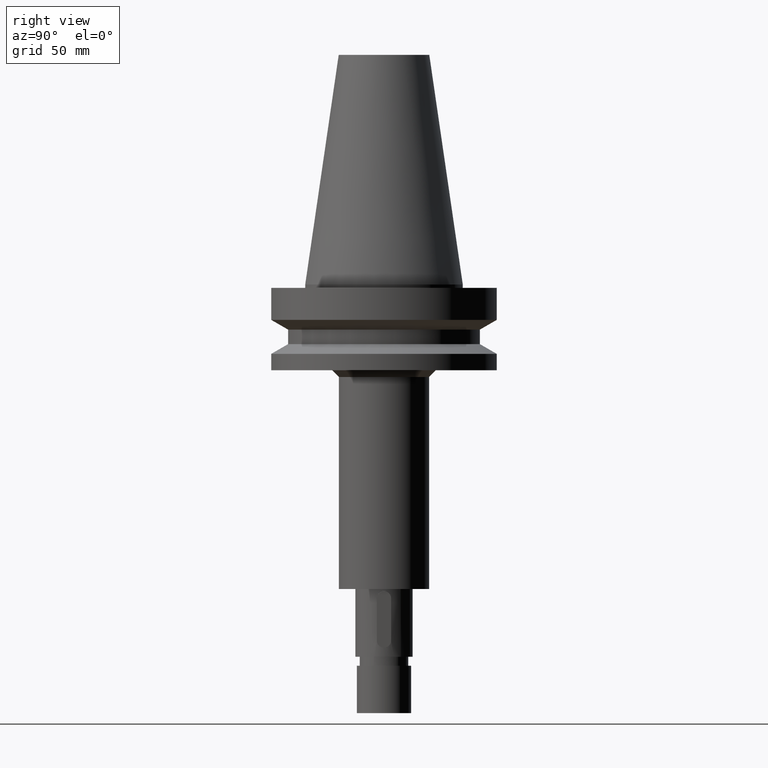
[diagram: clean part render]
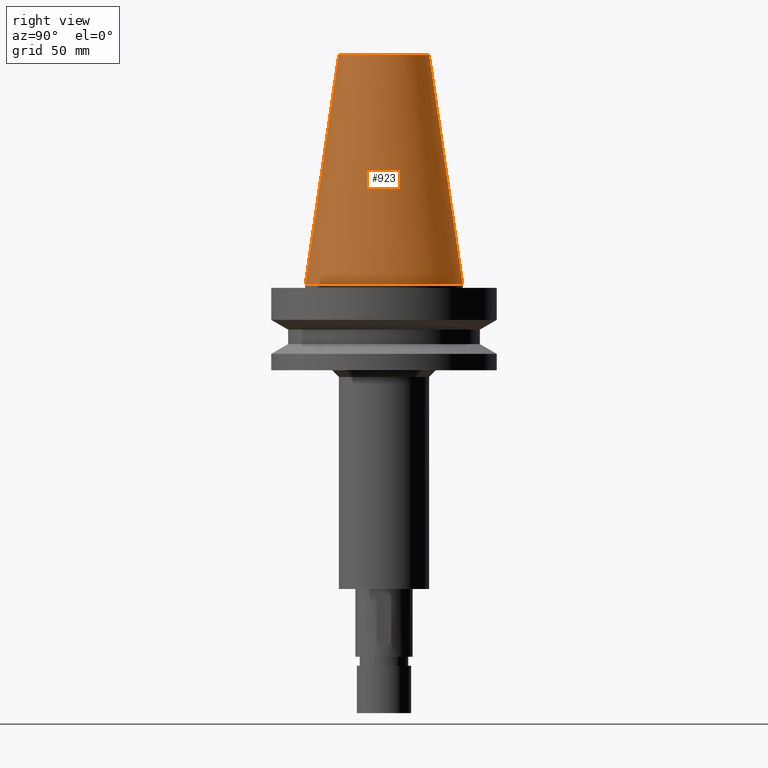
[diagram: same view with one face highlighted and labeled with its STEP entity id]
A machine part, right view. The second image highlights one B-rep face of the part: STEP entity #923.
In plain terms, the highlighted conical surface has half-angle 8.297 deg.
Its self-contained STEP definition (entity closure, byte-faithful):
#94=CARTESIAN_POINT('',(0.E0,1.847992019913E-14,1.018E2));
#95=DIRECTION('',(0.E0,0.E0,-1.E0));
#96=DIRECTION('',(0.E0,1.E0,0.E0));
#97=AXIS2_PLACEMENT_3D('',#94,#95,#96);
#126=DIRECTION('',(0.E0,1.443043893539E-1,-9.895333461856E-1));
#127=VECTOR('',#126,1.028767755957E2);
#128=CARTESIAN_POINT('',(0.E0,2.007942971896E1,1.018E2));
#129=LINE('',#128,#127);
#133=CARTESIAN_POINT('',(0.E0,1.847992019913E-14,3.979039320257E-13));
#134=DIRECTION('',(0.E0,0.E0,-1.E0));
#135=DIRECTION('',(0.E0,1.E0,0.E0));
#136=AXIS2_PLACEMENT_3D('',#133,#134,#135);
#141=DIRECTION('',(0.E0,-1.443043893539E-1,-9.895333461856E-1));
#142=VECTOR('',#141,1.028767755957E2);
#143=CARTESIAN_POINT('',(0.E0,-2.007942971896E1,1.018E2));
#144=LINE('',#143,#142);
#718=CARTESIAN_POINT('',(0.E0,2.007942971896E1,1.018E2));
#719=CARTESIAN_POINT('',(0.E0,-2.007942971896E1,1.018E2));
#720=VERTEX_POINT('',#718);
#721=VERTEX_POINT('',#719);
#722=CARTESIAN_POINT('',(0.E0,3.4925E1,5.400124791777E-13));
#723=VERTEX_POINT('',#722);
#724=CARTESIAN_POINT('',(0.E0,-3.4925E1,3.979039320257E-13));
#725=VERTEX_POINT('',#724);
#909=CARTESIAN_POINT('',(0.E0,1.847992019913E-14,5.09E1));
#910=DIRECTION('',(0.E0,0.E0,-1.E0));
#911=DIRECTION('',(0.E0,-1.E0,0.E0));
#912=AXIS2_PLACEMENT_3D('',#909,#910,#911);
#913=CONICAL_SURFACE('',#912,2.750221485948E1,8.297E0);
#915=ORIENTED_EDGE('',*,*,#914,.T.);
#917=ORIENTED_EDGE('',*,*,#916,.T.);
#919=ORIENTED_EDGE('',*,*,#918,.F.);
#920=ORIENTED_EDGE('',*,*,#898,.F.);
#921=EDGE_LOOP('',(#915,#917,#919,#920));
#922=FACE_OUTER_BOUND('',#921,.F.);
#98=CIRCLE('',#97,2.007942971896E1);
#137=CIRCLE('',#136,3.4925E1);
#898=EDGE_CURVE('',#720,#721,#98,.T.);
#914=EDGE_CURVE('',#720,#723,#129,.T.);
#916=EDGE_CURVE('',#723,#725,#137,.T.);
#918=EDGE_CURVE('',#721,#725,#144,.T.);
#923=ADVANCED_FACE('',(#922),#913,.T.);